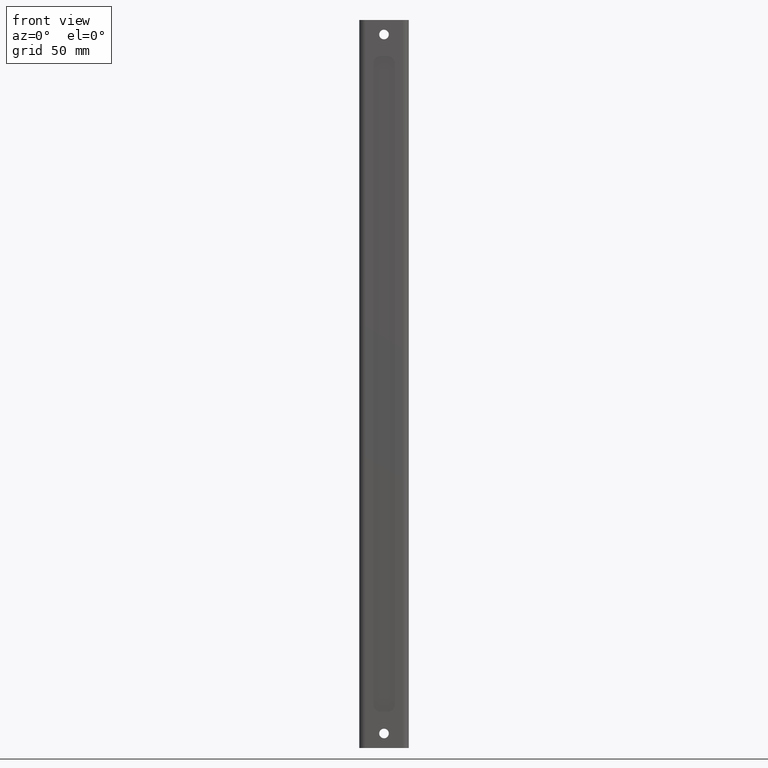
[diagram: clean part render]
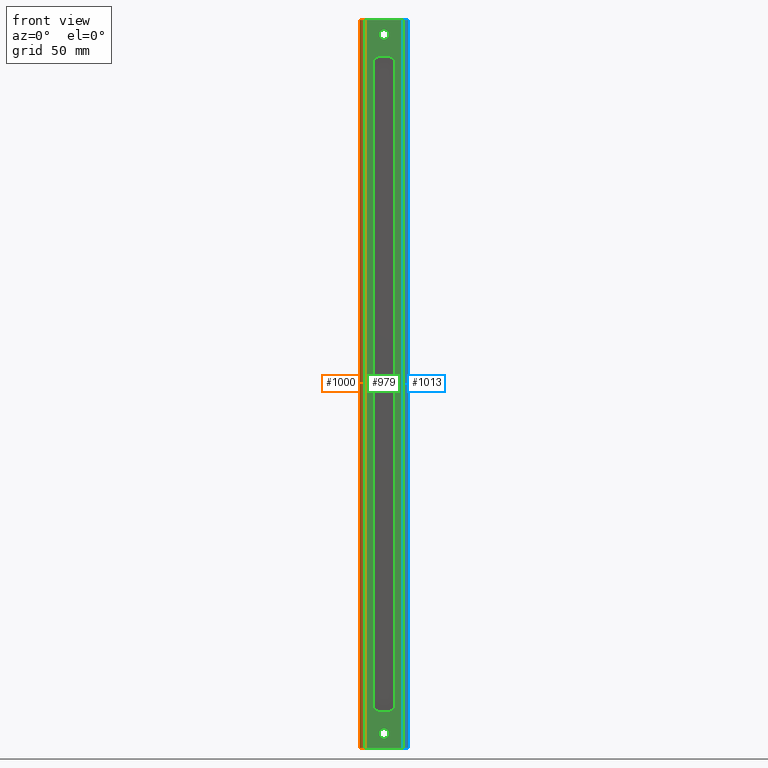
[diagram: same view with three faces highlighted in distinct colors, each labeled with its STEP entity id]
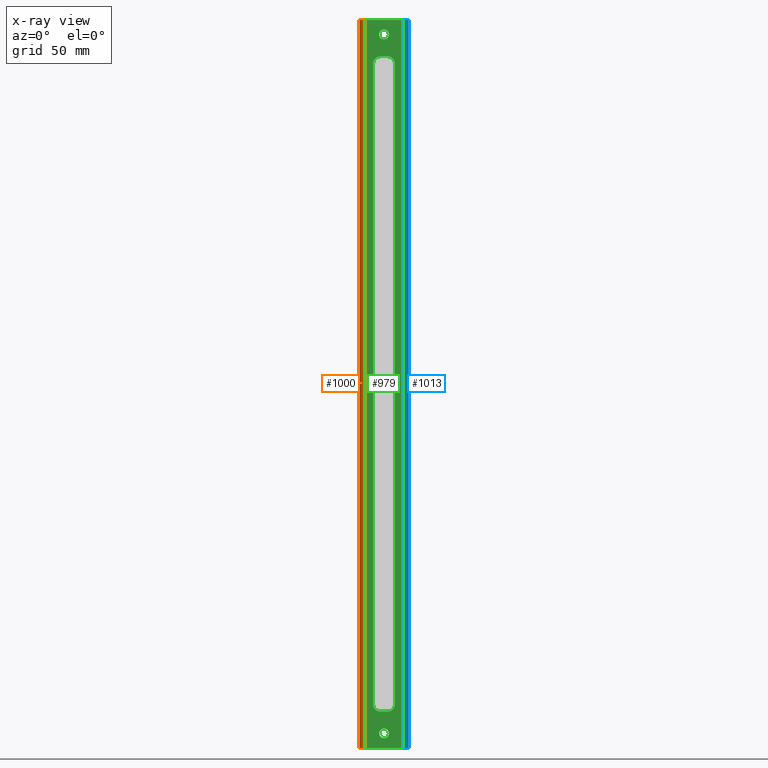
[diagram: x-ray of the same camera — body ghosted, the three highlighted faces saturated]
A machine part, front view with three faces highlighted in distinct colors.
The next image is the same camera in x-ray (body ghosted, the three faces saturated) — at least one of them is partly hidden behind the body in this view.
Their STEP definitions:

[orange] entity #1000 — the highlighted cylindrical surface (edge-blend (fillet) strip) has radius 4 mm, axis along (0, -0, 1).
#35=LINE('',#1539,#123);
#72=LINE('',#1669,#160);
#123=VECTOR('',#1215,1000.);
#160=VECTOR('',#1350,1000.);
#369=ORIENTED_EDGE('',*,*,#605,.T.);
#370=ORIENTED_EDGE('',*,*,#542,.T.);
#371=ORIENTED_EDGE('',*,*,#606,.F.);
#372=ORIENTED_EDGE('',*,*,#607,.F.);
#542=EDGE_CURVE('',#684,#686,#35,.T.);
#605=EDGE_CURVE('',#729,#684,#793,.T.);
#606=EDGE_CURVE('',#730,#686,#794,.T.);
#607=EDGE_CURVE('',#729,#730,#72,.F.);
#684=VERTEX_POINT('',#1534);
#686=VERTEX_POINT('',#1538);
#729=VERTEX_POINT('',#1666);
#730=VERTEX_POINT('',#1668);
#793=CIRCLE('',#1111,3.99999999999992);
#794=CIRCLE('',#1112,3.99999999999992);
#847=EDGE_LOOP('',(#369,#370,#371,#372));
#915=FACE_BOUND('',#847,.T.);
#957=CYLINDRICAL_SURFACE('',#1110,3.99999999999992);
#1000=ADVANCED_FACE('',(#915),#957,.T.);
#1110=AXIS2_PLACEMENT_3D('',#1664,#1344,#1345);
#1111=AXIS2_PLACEMENT_3D('',#1665,#1346,#1347);
#1112=AXIS2_PLACEMENT_3D('',#1667,#1348,#1349);
#1215=DIRECTION('',(3.32185076179637E-17,-1.66533453693773E-16,1.));
#1344=DIRECTION('',(3.32185076179637E-17,-1.66533453693773E-16,1.));
#1345=DIRECTION('',(0.,-1.,-1.66533453693773E-16));
#1346=DIRECTION('',(-8.93686180177302E-17,-1.66533453693773E-16,1.));
#1347=DIRECTION('',(0.,-1.,-1.66533453693773E-16));
#1348=DIRECTION('',(-8.93686180177302E-17,-1.66533453693773E-16,1.));
#1349=DIRECTION('',(0.,-1.,-1.66533453693773E-16));
#1350=DIRECTION('',(-3.32185076179637E-17,1.66533453693773E-16,-1.));
#1534=CARTESIAN_POINT('',(-13.,-34.0130367319023,-250.));
#1538=CARTESIAN_POINT('',(-13.,-34.0130367319026,250.));
#1539=CARTESIAN_POINT('',(-13.,-34.0130367319026,-3.28740653346074E-15));
#1664=CARTESIAN_POINT('',(-13.,-30.0130367319026,-2.62127271868566E-15));
#1665=CARTESIAN_POINT('',(-13.,-30.0130367319024,-250.));
#1666=CARTESIAN_POINT('',(-16.9999999999999,-30.0130367319024,-250.));
#1667=CARTESIAN_POINT('',(-13.,-30.0130367319027,250.));
#1668=CARTESIAN_POINT('',(-16.9999999999999,-30.0130367319026,250.));
#1669=CARTESIAN_POINT('',(-16.9999999999999,-30.0130367319026,-2.48839868821381E-15));

[blue] entity #1013 — the highlighted cylindrical surface (edge-blend (fillet) strip) has radius 4 mm, axis along (0, 0, -1).
#33=LINE('',#1535,#121);
#90=LINE('',#1720,#178);
#121=VECTOR('',#1213,1000.);
#178=VECTOR('',#1410,1000.);
#429=ORIENTED_EDGE('',*,*,#631,.T.);
#430=ORIENTED_EDGE('',*,*,#540,.T.);
#431=ORIENTED_EDGE('',*,*,#632,.F.);
#432=ORIENTED_EDGE('',*,*,#633,.F.);
#540=EDGE_CURVE('',#685,#683,#33,.T.);
#631=EDGE_CURVE('',#741,#685,#801,.T.);
#632=EDGE_CURVE('',#742,#683,#802,.T.);
#633=EDGE_CURVE('',#741,#742,#90,.T.);
#683=VERTEX_POINT('',#1533);
#685=VERTEX_POINT('',#1536);
#741=VERTEX_POINT('',#1717);
#742=VERTEX_POINT('',#1719);
#801=CIRCLE('',#1132,3.99999999999999);
#802=CIRCLE('',#1133,3.99999999999999);
#860=EDGE_LOOP('',(#429,#430,#431,#432));
#928=FACE_BOUND('',#860,.T.);
#964=CYLINDRICAL_SURFACE('',#1131,3.99999999999999);
#1013=ADVANCED_FACE('',(#928),#964,.T.);
#1131=AXIS2_PLACEMENT_3D('',#1715,#1404,#1405);
#1132=AXIS2_PLACEMENT_3D('',#1716,#1406,#1407);
#1133=AXIS2_PLACEMENT_3D('',#1718,#1408,#1409);
#1213=DIRECTION('',(-3.43749899352818E-17,1.66533453693773E-16,-1.));
#1404=DIRECTION('',(8.93686180177302E-17,1.66533453693773E-16,-1.));
#1405=DIRECTION('',(4.06163832661068E-16,1.,1.66533453693773E-16));
#1406=DIRECTION('',(8.93686180177302E-17,1.66533453693773E-16,-1.));
#1407=DIRECTION('',(4.06163832661068E-16,1.,1.66533453693773E-16));
#1408=DIRECTION('',(8.93686180177302E-17,1.66533453693773E-16,-1.));
#1409=DIRECTION('',(4.06163832661068E-16,1.,1.66533453693773E-16));
#1410=DIRECTION('',(8.93686180177302E-17,1.31838984174237E-16,-1.));
#1533=CARTESIAN_POINT('',(13.0000000000001,-34.0130367319023,-250.));
#1535=CARTESIAN_POINT('',(13.0000000000001,-34.0130367319026,375.));
#1536=CARTESIAN_POINT('',(13.,-34.0130367319026,250.));
#1715=CARTESIAN_POINT('',(13.0000000000001,-30.0130367319025,-375.));
#1716=CARTESIAN_POINT('',(13.,-30.0130367319026,250.));
#1717=CARTESIAN_POINT('',(17.,-30.0130367319026,250.));
#1718=CARTESIAN_POINT('',(13.0000000000001,-30.0130367319023,-250.));
#1719=CARTESIAN_POINT('',(17.0000000000001,-30.0130367319024,-250.));
#1720=CARTESIAN_POINT('',(17.,-30.0130367319026,-1.92994200509913E-15));

[green] entity #979 — the highlighted planar face has unit normal (0, 1, 0).
#28=LINE('',#1516,#116);
#29=LINE('',#1521,#117);
#30=LINE('',#1525,#118);
#31=LINE('',#1529,#119);
#32=LINE('',#1532,#120);
#33=LINE('',#1535,#121);
#34=LINE('',#1537,#122);
#35=LINE('',#1539,#123);
#116=VECTOR('',#1200,1000.);
#117=VECTOR('',#1203,1000.);
#118=VECTOR('',#1206,1000.);
#119=VECTOR('',#1209,1000.);
#120=VECTOR('',#1212,1000.);
#121=VECTOR('',#1213,1000.);
#122=VECTOR('',#1214,1000.);
#123=VECTOR('',#1215,1000.);
#200=PLANE('',#1058);
#244=ORIENTED_EDGE('',*,*,#530,.T.);
#245=ORIENTED_EDGE('',*,*,#531,.F.);
#246=ORIENTED_EDGE('',*,*,#532,.T.);
#247=ORIENTED_EDGE('',*,*,#533,.F.);
#248=ORIENTED_EDGE('',*,*,#534,.T.);
#249=ORIENTED_EDGE('',*,*,#535,.F.);
#250=ORIENTED_EDGE('',*,*,#536,.T.);
#251=ORIENTED_EDGE('',*,*,#537,.F.);
#252=ORIENTED_EDGE('',*,*,#538,.T.);
#253=ORIENTED_EDGE('',*,*,#539,.F.);
#254=ORIENTED_EDGE('',*,*,#540,.F.);
#255=ORIENTED_EDGE('',*,*,#541,.F.);
#256=ORIENTED_EDGE('',*,*,#542,.F.);
#257=ORIENTED_EDGE('',*,*,#543,.T.);
#530=EDGE_CURVE('',#674,#674,#762,.T.);
#531=EDGE_CURVE('',#675,#676,#28,.T.);
#532=EDGE_CURVE('',#675,#677,#763,.T.);
#533=EDGE_CURVE('',#678,#677,#29,.T.);
#534=EDGE_CURVE('',#678,#679,#764,.T.);
#535=EDGE_CURVE('',#680,#679,#30,.T.);
#536=EDGE_CURVE('',#680,#681,#765,.T.);
#537=EDGE_CURVE('',#682,#681,#31,.T.);
#538=EDGE_CURVE('',#682,#676,#766,.T.);
#539=EDGE_CURVE('',#683,#684,#32,.T.);
#540=EDGE_CURVE('',#685,#683,#33,.T.);
#541=EDGE_CURVE('',#686,#685,#34,.T.);
#542=EDGE_CURVE('',#684,#686,#35,.T.);
#543=EDGE_CURVE('',#687,#687,#767,.T.);
#674=VERTEX_POINT('',#1515);
#675=VERTEX_POINT('',#1517);
#676=VERTEX_POINT('',#1518);
#677=VERTEX_POINT('',#1520);
#678=VERTEX_POINT('',#1522);
#679=VERTEX_POINT('',#1524);
#680=VERTEX_POINT('',#1526);
#681=VERTEX_POINT('',#1528);
#682=VERTEX_POINT('',#1530);
#683=VERTEX_POINT('',#1533);
#684=VERTEX_POINT('',#1534);
#685=VERTEX_POINT('',#1536);
#686=VERTEX_POINT('',#1538);
#687=VERTEX_POINT('',#1541);
#762=CIRCLE('',#1059,3.29999999999997);
#763=CIRCLE('',#1060,5.);
#764=CIRCLE('',#1061,5.);
#765=CIRCLE('',#1062,5.);
#766=CIRCLE('',#1063,5.);
#767=CIRCLE('',#1064,3.29999999999997);
#818=EDGE_LOOP('',(#244));
#819=EDGE_LOOP('',(#245,#246,#247,#248,#249,#250,#251,#252));
#820=EDGE_LOOP('',(#253,#254,#255,#256));
#821=EDGE_LOOP('',(#257));
#886=FACE_BOUND('',#818,.T.);
#887=FACE_BOUND('',#819,.T.);
#888=FACE_BOUND('',#820,.T.);
#889=FACE_BOUND('',#821,.T.);
#979=ADVANCED_FACE('',(#886,#887,#888,#889),#200,.F.);
#1058=AXIS2_PLACEMENT_3D('',#1513,#1196,#1197);
#1059=AXIS2_PLACEMENT_3D('',#1514,#1198,#1199);
#1060=AXIS2_PLACEMENT_3D('',#1519,#1201,#1202);
#1061=AXIS2_PLACEMENT_3D('',#1523,#1204,#1205);
#1062=AXIS2_PLACEMENT_3D('',#1527,#1207,#1208);
#1063=AXIS2_PLACEMENT_3D('',#1531,#1210,#1211);
#1064=AXIS2_PLACEMENT_3D('',#1540,#1216,#1217);
#1196=DIRECTION('',(4.06163832661068E-16,1.,1.66533453693773E-16));
#1197=DIRECTION('',(-1.,4.06163832661068E-16,-8.93686180177302E-17));
#1198=DIRECTION('',(4.06163832661068E-16,1.,1.66533453693773E-16));
#1199=DIRECTION('',(-1.,4.06163832661068E-16,0.));
#1200=DIRECTION('',(-8.93686180177302E-17,-1.66533453693773E-16,1.));
#1201=DIRECTION('',(4.06163832661068E-16,1.,1.66533453693773E-16));
#1202=DIRECTION('',(-1.,4.06163832661068E-16,-8.93686180177302E-17));
#1203=DIRECTION('',(1.,-4.06163832661068E-16,8.93686180177302E-17));
#1204=DIRECTION('',(4.06163832661068E-16,1.,1.66533453693773E-16));
#1205=DIRECTION('',(-1.,4.06163832661068E-16,-8.93686180177302E-17));
#1206=DIRECTION('',(8.93686180177302E-17,1.66533453693773E-16,-1.));
#1207=DIRECTION('',(4.06163832661068E-16,1.,1.66533453693773E-16));
#1208=DIRECTION('',(-1.,4.06163832661068E-16,-8.93686180177302E-17));
#1209=DIRECTION('',(-1.,4.06163832661068E-16,-8.93686180177302E-17));
#1210=DIRECTION('',(4.06163832661068E-16,1.,1.66533453693773E-16));
#1211=DIRECTION('',(-1.,4.06163832661068E-16,-8.93686180177302E-17));
#1212=DIRECTION('',(-1.,4.06163832661068E-16,-8.93686180177302E-17));
#1213=DIRECTION('',(-3.43749899352818E-17,1.66533453693773E-16,-1.));
#1214=DIRECTION('',(1.,-4.06163832661068E-16,8.93686180177302E-17));
#1215=DIRECTION('',(3.32185076179637E-17,-1.66533453693773E-16,1.));
#1216=DIRECTION('',(4.06163832661068E-16,1.,1.66533453693773E-16));
#1217=DIRECTION('',(-1.,4.06163832661068E-16,0.));
#1513=CARTESIAN_POINT('',(-1.03104538151908E-14,-34.0130367319026,-3.71924713249427E-15));
#1514=CARTESIAN_POINT('',(-1.74730665500947E-14,-34.0130367319026,240.));
#1515=CARTESIAN_POINT('',(-3.29999999999999,-34.0130367319026,240.));
#1516=CARTESIAN_POINT('',(7.50000000000001,-34.0130367319025,-350.));
#1517=CARTESIAN_POINT('',(7.5,-34.0130367319025,-220.));
#1518=CARTESIAN_POINT('',(7.49999999999996,-34.0130367319026,220.));
#1519=CARTESIAN_POINT('',(2.50000000000007,-34.0130367319023,-220.));
#1520=CARTESIAN_POINT('',(2.50000000000007,-34.0130367319023,-225.));
#1521=CARTESIAN_POINT('',(-5.99999999999993,-34.0130367319023,-225.));
#1522=CARTESIAN_POINT('',(-2.49999999999997,-34.0130367319023,-225.));
#1523=CARTESIAN_POINT('',(-2.49999999999997,-34.0130367319023,-220.));
#1524=CARTESIAN_POINT('',(-7.50000000000003,-34.0130367319025,-220.));
#1525=CARTESIAN_POINT('',(-7.50000000000002,-34.0130367319025,-350.));
#1526=CARTESIAN_POINT('',(-7.50000000000007,-34.0130367319026,220.));
#1527=CARTESIAN_POINT('',(-2.50000000000008,-34.0130367319026,220.));
#1528=CARTESIAN_POINT('',(-2.50000000000008,-34.0130367319026,225.));
#1529=CARTESIAN_POINT('',(-6.00000000000005,-34.0130367319026,225.));
#1530=CARTESIAN_POINT('',(2.49999999999995,-34.0130367319026,225.));
#1531=CARTESIAN_POINT('',(2.49999999999995,-34.0130367319026,220.));
#1532=CARTESIAN_POINT('',(-7.49999999999997,-34.0130367319023,-250.));
#1533=CARTESIAN_POINT('',(13.0000000000001,-34.0130367319023,-250.));
#1534=CARTESIAN_POINT('',(-13.,-34.0130367319023,-250.));
#1535=CARTESIAN_POINT('',(13.0000000000001,-34.0130367319026,375.));
#1536=CARTESIAN_POINT('',(13.,-34.0130367319026,250.));
#1537=CARTESIAN_POINT('',(-7.49999999999999,-34.0130367319026,250.));
#1538=CARTESIAN_POINT('',(-13.,-34.0130367319026,250.));
#1539=CARTESIAN_POINT('',(-13.,-34.0130367319026,-3.28740653346074E-15));
#1540=CARTESIAN_POINT('',(1.34900564498442E-14,-34.0130367319023,-240.));
#1541=CARTESIAN_POINT('',(-3.29999999999996,-34.0130367319023,-240.));